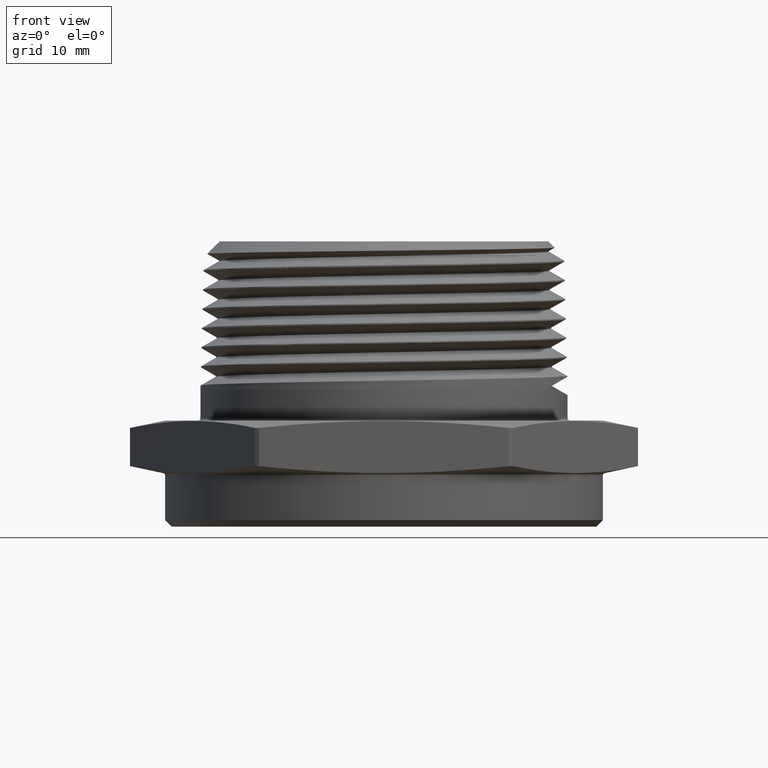
[diagram: clean part render]
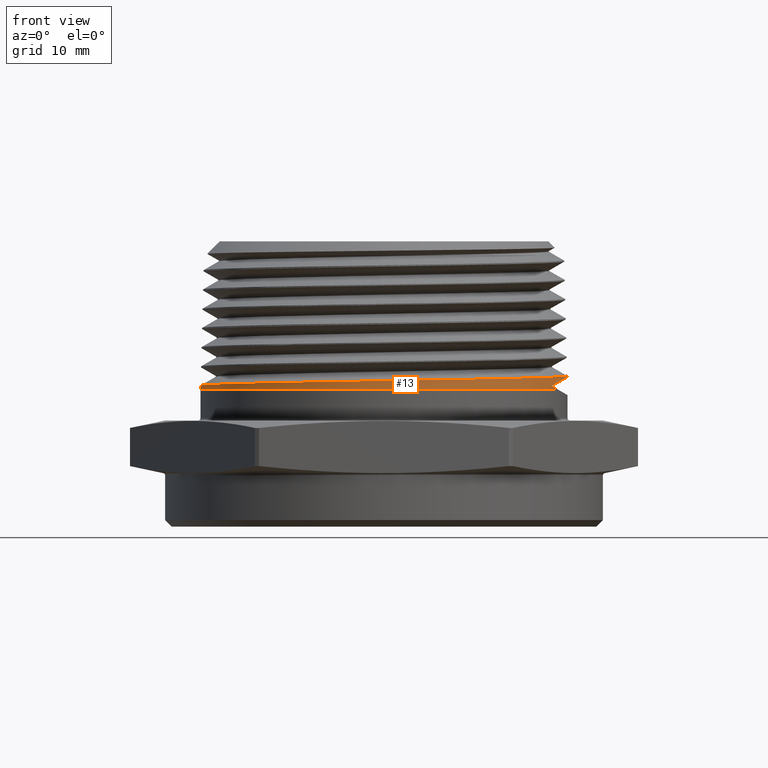
[diagram: same view with one face highlighted and labeled with its STEP entity id]
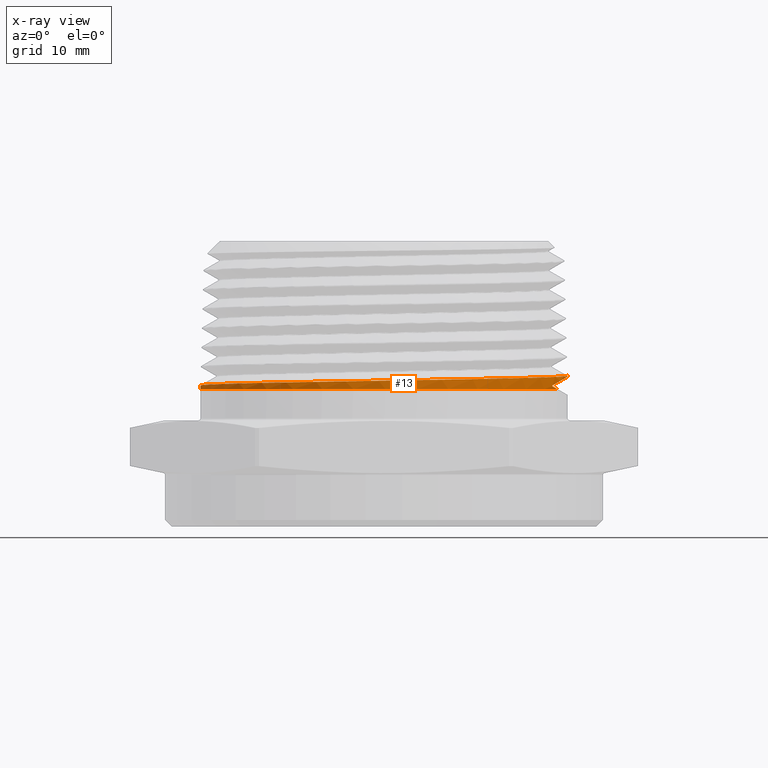
[diagram: x-ray of the same camera — body ghosted, the highlighted face saturated]
A machine part, front view. The second image highlights one B-rep face of the part: STEP entity #13.
The next image is the same camera in x-ray: the body ghosted, the highlighted face saturated — about 0% of this face is hidden behind the body in this view.
In plain terms, the highlighted conical surface has half-angle 1.47 deg.
Its self-contained STEP definition (entity closure, byte-faithful):
#13 = ADVANCED_FACE ( 'NONE', ( #7384 ), #7389, .T. ) ;
#61 = DIRECTION ( 'NONE',  ( -1.000000000000000000, 0.0000000000000000000, 0.0000000000000000000 ) ) ;
#62 = CARTESIAN_POINT ( 'NONE',  ( 0.0000000000000000000, 0.0000000000000000000, 0.2594869294921575100 ) ) ;
#63 = DIRECTION ( 'NONE',  ( -0.0000000000000000000, -0.0000000000000000000, -1.000000000000000000 ) ) ;
#167 =( BOUNDED_CURVE ( )  B_SPLINE_CURVE ( 3, ( #5749, #5744, #5745, #5750 ),
 .UNSPECIFIED., .F., .T. ) 
 B_SPLINE_CURVE_WITH_KNOTS ( ( 4, 4 ),
 ( 5.869370131853280300, 5.943002908219813900 ),
 .UNSPECIFIED. ) 
 CURVE ( )  GEOMETRIC_REPRESENTATION_ITEM ( )  RATIONAL_B_SPLINE_CURVE ( ( 1.000000000000000000, 0.9995482355523807000, 0.9995482355523807000, 1.000000000000000000 ) ) 
 REPRESENTATION_ITEM ( '' )  );
#168 =( BOUNDED_CURVE ( )  B_SPLINE_CURVE ( 3, ( #5755, #5686, #5756, #5757 ),
 .UNSPECIFIED., .F., .T. ) 
 B_SPLINE_CURVE_WITH_KNOTS ( ( 4, 4 ),
 ( 3.141592653589793100, 3.543415762295796200 ),
 .UNSPECIFIED. ) 
 CURVE ( )  GEOMETRIC_REPRESENTATION_ITEM ( )  RATIONAL_B_SPLINE_CURVE ( ( 1.000000000000000000, 0.9865900485260260500, 0.9865900485260260500, 1.000000000000000000 ) ) 
 REPRESENTATION_ITEM ( '' )  );
#169 = B_SPLINE_CURVE_WITH_KNOTS ( 'NONE', 3,
 ( #5752, #5743, #5753, #5754 ),
 .UNSPECIFIED., .F., .F.,
 ( 4, 4 ),
 ( 0.03793897753117499900, 0.03802420484377673500 ),
 .UNSPECIFIED. ) ;
#190 = AXIS2_PLACEMENT_3D ( 'NONE', #62, #63, #61 ) ;
#222 = AXIS2_PLACEMENT_3D ( 'NONE', #5746, #5747, #5748 ) ;
#824 = CARTESIAN_POINT ( 'NONE',  ( 0.7616025199133236200, -0.3288974514528525400, 0.3978522102968976000 ) ) ;
#828 = CARTESIAN_POINT ( 'NONE',  ( -0.8300000000000001800, 0.0000000000000000000, 0.3816959141940095600 ) ) ;
#863 = CARTESIAN_POINT ( 'NONE',  ( 0.7837860456256534600, -0.2730923555914762700, 0.3816959141940095600 ) ) ;
#866 = CARTESIAN_POINT ( 'NONE',  ( 0.8285928721710982300, 1.585649484003579900E-015, 0.4365291082060320800 ) ) ;
#867 = CARTESIAN_POINT ( 'NONE',  ( -0.8295792180391073900, 4.789723489436561000E-015, 0.3980930164504476500 ) ) ;
#869 = CARTESIAN_POINT ( 'NONE',  ( 0.7616025199133239500, -0.3291141407280375200, 0.3945035787355981000 ) ) ;
#877 = CARTESIAN_POINT ( 'NONE',  ( 0.8284634355445250600, 1.417146146713336500E-015, 0.4415730164504497700 ) ) ;
#1237 = DIRECTION ( 'NONE',  ( 0.02565352539212741000, 3.141650775831418500E-018, -0.9996708941621514900 ) ) ;
#2189 = CARTESIAN_POINT ( 'NONE',  ( 0.8331361234087172300, 1.020297486786519900E-016, 0.2594869294921575100 ) ) ;
#4657 = EDGE_CURVE ( 'NONE', #7336, #7325, #7464, .T. ) ;
#4672 = EDGE_CURVE ( 'NONE', #7336, #7326, #7718, .T. ) ;
#4673 = EDGE_CURVE ( 'NONE', #7326, #7323, #7470, .T. ) ;
#4674 = EDGE_CURVE ( 'NONE', #7323, #7321, #7469, .T. ) ;
#4675 = EDGE_CURVE ( 'NONE', #7328, #7321, #167, .T. ) ;
#4676 = EDGE_CURVE ( 'NONE', #5199, #7328, #169, .T. ) ;
#4677 = EDGE_CURVE ( 'NONE', #7325, #5199, #168, .T. ) ;
#5008 = ORIENTED_EDGE ( 'NONE', *, *, #4676, .F. ) ;
#5009 = ORIENTED_EDGE ( 'NONE', *, *, #4677, .F. ) ;
#5119 = EDGE_LOOP ( 'NONE', ( #5151, #5152, #5153, #5154, #5155, #5008, #5009 ) ) ;
#5151 = ORIENTED_EDGE ( 'NONE', *, *, #4657, .F. ) ;
#5152 = ORIENTED_EDGE ( 'NONE', *, *, #4672, .T. ) ;
#5153 = ORIENTED_EDGE ( 'NONE', *, *, #4673, .T. ) ;
#5154 = ORIENTED_EDGE ( 'NONE', *, *, #4674, .T. ) ;
#5155 = ORIENTED_EDGE ( 'NONE', *, *, #4675, .F. ) ;
#5199 = VERTEX_POINT ( 'NONE', #824 ) ;
#5629 = CARTESIAN_POINT ( 'NONE',  ( 0.8284869047044064500, -0.05474459136989899600, 0.4406584662790776200 ) ) ;
#5630 = CARTESIAN_POINT ( 'NONE',  ( 0.8284634355445250600, 1.417146146713336500E-015, 0.4415730164504497700 ) ) ;
#5686 = CARTESIAN_POINT ( 'NONE',  ( 0.8285928721710985600, -0.1134037409271062800, 0.4365291082060322500 ) ) ;
#5687 = DIRECTION ( 'NONE',  ( -0.02565352539212741000, 0.0000000000000000000, -0.9996708941621514900 ) ) ;
#5688 = CARTESIAN_POINT ( 'NONE',  ( -0.8331361234087172300, 0.0000000000000000000, 0.2594869294921575100 ) ) ;
#5689 = CARTESIAN_POINT ( 'NONE',  ( 0.8231288701480736800, -0.1087909912082236900, 0.4397556614123447300 ) ) ;
#5690 = CARTESIAN_POINT ( 'NONE',  ( 0.8072358009317180900, -0.1886639130498085900, 0.4383952045899307000 ) ) ;
#5691 = CARTESIAN_POINT ( 'NONE',  ( 0.8005980526482339200, -0.2151659075075994000, 0.4379375147009466100 ) ) ;
#5692 = CARTESIAN_POINT ( 'NONE',  ( 0.7846961124396107900, -0.2674779544471820900, 0.4370242878646144500 ) ) ;
#5693 = CARTESIAN_POINT ( 'NONE',  ( 0.7755167697256776200, -0.2930347210191959200, 0.4365731642503668000 ) ) ;
#5694 = CARTESIAN_POINT ( 'NONE',  ( 0.7444120130093341300, -0.3679646725380448800, 0.4352178824643982400 ) ) ;
#5695 = CARTESIAN_POINT ( 'NONE',  ( 0.7189533140610339100, -0.4156139824068627000, 0.4343201152857271700 ) ) ;
#5696 = CARTESIAN_POINT ( 'NONE',  ( 0.6735245109511469600, -0.4835546236731538300, 0.4329549922958432200 ) ) ;
#5697 = CARTESIAN_POINT ( 'NONE',  ( 0.6571479158120456800, -0.5055994543721821200, 0.4324950202074069300 ) ) ;
#5698 = CARTESIAN_POINT ( 'NONE',  ( 0.6226786867320582800, -0.5475253378788694800, 0.4315886320198209500 ) ) ;
#5699 = CARTESIAN_POINT ( 'NONE',  ( 0.6045042450601855200, -0.5675373678943408400, 0.4311396007921464700 ) ) ;
#5700 = CARTESIAN_POINT ( 'NONE',  ( 0.5663058188173031300, -0.6056897882638864200, 0.4302378875604012700 ) ) ;
#5701 = CARTESIAN_POINT ( 'NONE',  ( 0.5462818179477121300, -0.6238301660320195700, 0.4297853692191328500 ) ) ;
#5702 = CARTESIAN_POINT ( 'NONE',  ( 0.5148406730660272100, -0.6496188614683160400, 0.4291063241921094800 ) ) ;
#5703 = CARTESIAN_POINT ( 'NONE',  ( 0.5041256892622004700, -0.6579776955430108900, 0.4288798171773635100 ) ) ;
#5704 = CARTESIAN_POINT ( 'NONE',  ( 0.4822183298137173700, -0.6742122581316820600, 0.4284254314603283000 ) ) ;
#5705 = CARTESIAN_POINT ( 'NONE',  ( 0.4709975016121851800, -0.6821055609716241100, 0.4281969938915190500 ) ) ;
#5706 = CARTESIAN_POINT ( 'NONE',  ( 0.4142531639267636500, -0.7199590988948264500, 0.4270577997670708700 ) ) ;
#5707 = CARTESIAN_POINT ( 'NONE',  ( 0.3665493668753099200, -0.7453660967742878900, 0.4261598682942794300 ) ) ;
#5708 = CARTESIAN_POINT ( 'NONE',  ( 0.2916289623112549600, -0.7763683419452314100, 0.4248059072465063500 ) ) ;
#5709 = CARTESIAN_POINT ( 'NONE',  ( 0.2660907077448783100, -0.7855091943019240100, 0.4243516897681923200 ) ) ;
#5710 = CARTESIAN_POINT ( 'NONE',  ( 0.2269109407024466100, -0.7973774672731636100, 0.4236681994542475500 ) ) ;
#5711 = CARTESIAN_POINT ( 'NONE',  ( 0.2136881783129117300, -0.8010281226690442200, 0.4234396071915911300 ) ) ;
#5712 = CARTESIAN_POINT ( 'NONE',  ( 0.1872400879667917000, -0.8076318241991156100, 0.4229854172531182800 ) ) ;
#5713 = CARTESIAN_POINT ( 'NONE',  ( 0.1739805527773029500, -0.8105962620567215300, 0.4227592139349210000 ) ) ;
#5714 = CARTESIAN_POINT ( 'NONE',  ( 0.1075085279009050200, -0.8237600863137740600, 0.4216276906958937900 ) ) ;
#5715 = CARTESIAN_POINT ( 'NONE',  ( 0.05377776645863828500, -0.8290314019204827500, 0.4207308718664552500 ) ) ;
#5716 = CARTESIAN_POINT ( 'NONE',  ( -0.02765103877579162500, -0.8290163821960253600, 0.4193713644869673200 ) ) ;
#5717 = CARTESIAN_POINT ( 'NONE',  ( -0.05508621908144271900, -0.8276611153121956600, 0.4189114715750006400 ) ) ;
#5718 = CARTESIAN_POINT ( 'NONE',  ( -0.1092937395627554100, -0.8222840040991882300, 0.4180021611434425200 ) ) ;
#5719 = CARTESIAN_POINT ( 'NONE',  ( -0.1360861526132027500, -0.8182808466019034800, 0.4175523814579409900 ) ) ;
#5720 = CARTESIAN_POINT ( 'NONE',  ( -0.2155522173337253200, -0.8024254125442374900, 0.4161995462474488100 ) ) ;
#5721 = CARTESIAN_POINT ( 'NONE',  ( -0.2673236399926375300, -0.7867643359947110700, 0.4153012229080885700 ) ) ;
#5722 = CARTESIAN_POINT ( 'NONE',  ( -0.3431037120626130300, -0.7553509291711680800, 0.4139318442534933300 ) ) ;
#5723 = CARTESIAN_POINT ( 'NONE',  ( -0.3677546749703238800, -0.7436642831268331900, 0.4134751689399788200 ) ) ;
#5724 = CARTESIAN_POINT ( 'NONE',  ( -0.4154990477241523600, -0.7181079814921927900, 0.4125713404534224200 ) ) ;
#5725 = CARTESIAN_POINT ( 'NONE',  ( -0.4386550910515827900, -0.7042123849336522400, 0.4121230233957428000 ) ) ;
#5726 = CARTESIAN_POINT ( 'NONE',  ( -0.4835472903286355800, -0.6742060132327193400, 0.4112217354901617200 ) ) ;
#5727 = CARTESIAN_POINT ( 'NONE',  ( -0.5052834872475550100, -0.6580952991291932900, 0.4107688573554742500 ) ) ;
#5728 = CARTESIAN_POINT ( 'NONE',  ( -0.5473072849594753400, -0.6236138015217604900, 0.4098616362909898700 ) ) ;
#5729 = CARTESIAN_POINT ( 'NONE',  ( -0.5676767840674118400, -0.6051468471027537900, 0.4094052364146736300 ) ) ;
#5730 = CARTESIAN_POINT ( 'NONE',  ( -0.6253402409262296400, -0.5474355950889676600, 0.4080435910662758600 ) ) ;
#5731 = CARTESIAN_POINT ( 'NONE',  ( -0.6595765212909636700, -0.5056735466746391500, 0.4071468420421259200 ) ) ;
#5732 = CARTESIAN_POINT ( 'NONE',  ( -0.7047095938293574900, -0.4381677593708459000, 0.4057917340140454500 ) ) ;
#5733 = CARTESIAN_POINT ( 'NONE',  ( -0.7187257605627182000, -0.4148197327210368900, 0.4053359748883823600 ) ) ;
#5734 = CARTESIAN_POINT ( 'NONE',  ( -0.7445259995137296600, -0.3665542795123157800, 0.4044227555358108100 ) ) ;
#5735 = CARTESIAN_POINT ( 'NONE',  ( -0.7561289796131660500, -0.3419828148276234400, 0.4039717756572699900 ) ) ;
#5736 = CARTESIAN_POINT ( 'NONE',  ( -0.7871779835786340000, -0.2669969915231676900, 0.4026174515321584400 ) ) ;
#5737 = CARTESIAN_POINT ( 'NONE',  ( -0.8028991474535268600, -0.2153229253648280000, 0.4017206152654969100 ) ) ;
#5738 = CARTESIAN_POINT ( 'NONE',  ( -0.8188750125718555800, -0.1352401388247870000, 0.4003581499034904500 ) ) ;
#5739 = CARTESIAN_POINT ( 'NONE',  ( -0.8229132416947149100, -0.1080558835072792900, 0.3998982742688845800 ) ) ;
#5740 = CARTESIAN_POINT ( 'NONE',  ( -0.8282416694771729300, -0.05400549118586670000, 0.3989921469316425900 ) ) ;
#5741 = CARTESIAN_POINT ( 'NONE',  ( -0.8295676606359798600, -0.02699531847032497100, 0.3985433872802899300 ) ) ;
#5742 = CARTESIAN_POINT ( 'NONE',  ( -0.8295792180391073900, 4.789723489436561000E-015, 0.3980930164504476500 ) ) ;
#5743 = CARTESIAN_POINT ( 'NONE',  ( 0.7616025199133237300, -0.3289697011813033100, 0.3967360010388424900 ) ) ;
#5744 = CARTESIAN_POINT ( 'NONE',  ( 0.7696830948834723100, -0.3107167030927579500, 0.3898382566013760000 ) ) ;
#5745 = CARTESIAN_POINT ( 'NONE',  ( 0.7770809455401643800, -0.2920343346840596500, 0.3855671055333101400 ) ) ;
#5746 = CARTESIAN_POINT ( 'NONE',  ( 0.0000000000000000000, 0.0000000000000000000, 0.3816959141940095600 ) ) ;
#5747 = DIRECTION ( 'NONE',  ( 0.0000000000000000000, 0.0000000000000000000, 1.000000000000000000 ) ) ;
#5748 = DIRECTION ( 'NONE',  ( -1.000000000000000000, 0.0000000000000000000, 0.0000000000000000000 ) ) ;
#5749 = CARTESIAN_POINT ( 'NONE',  ( 0.7616025199133239500, -0.3291141407280375200, 0.3945035787355981000 ) ) ;
#5750 = CARTESIAN_POINT ( 'NONE',  ( 0.7837860456256534600, -0.2730923555914762700, 0.3816959141940095600 ) ) ;
#5752 = CARTESIAN_POINT ( 'NONE',  ( 0.7616025199133236200, -0.3288974514528525400, 0.3978522102968976000 ) ) ;
#5753 = CARTESIAN_POINT ( 'NONE',  ( 0.7616025199133238400, -0.3290419309322367100, 0.3956197904304010700 ) ) ;
#5754 = CARTESIAN_POINT ( 'NONE',  ( 0.7616025199133239500, -0.3291141407280375200, 0.3945035787355981000 ) ) ;
#5755 = CARTESIAN_POINT ( 'NONE',  ( 0.8285928721710982300, 1.585649484003579900E-015, 0.4365291082060320800 ) ) ;
#5756 = CARTESIAN_POINT ( 'NONE',  ( 0.8059592388270164800, -0.2245263738600148900, 0.4234615739020869400 ) ) ;
#5757 = CARTESIAN_POINT ( 'NONE',  ( 0.7616025199133236200, -0.3288974514528525400, 0.3978522102968976000 ) ) ;
#7321 = VERTEX_POINT ( 'NONE', #863 ) ;
#7323 = VERTEX_POINT ( 'NONE', #828 ) ;
#7325 = VERTEX_POINT ( 'NONE', #866 ) ;
#7326 = VERTEX_POINT ( 'NONE', #867 ) ;
#7328 = VERTEX_POINT ( 'NONE', #869 ) ;
#7336 = VERTEX_POINT ( 'NONE', #877 ) ;
#7384 = FACE_OUTER_BOUND ( 'NONE', #5119, .T. ) ;
#7389 = CONICAL_SURFACE ( 'NONE', #190, 0.8331361234087172300, 0.02565634000430899700 ) ;
#7464 = LINE ( 'NONE', #2189, #7466 ) ;
#7466 = VECTOR ( 'NONE', #1237, 39.37007874015748100 ) ;
#7469 = CIRCLE ( 'NONE', #222, 0.8300000000000001800 ) ;
#7470 = LINE ( 'NONE', #5688, #7471 ) ;
#7471 = VECTOR ( 'NONE', #5687, 39.37007874015748100 ) ;
#7718 = B_SPLINE_CURVE_WITH_KNOTS ( 'NONE', 3,
 ( #5630, #5629, #5689, #5690, #5691, #5692, #5693, #5694, #5695, #5696, #5697, #5698, #5699, #5700, #5701, #5702, #5703, #5704, #5705, #5706, #5707, #5708, #5709, #5710, #5711, #5712, #5713, #5714, #5715, #5716, #5717, #5718, #5719, #5720, #5721, #5722, #5723, #5724, #5725, #5726, #5727, #5728, #5729, #5730, #5731, #5732, #5733, #5734, #5735, #5736, #5737, #5738, #5739, #5740, #5741, #5742 ),
 .UNSPECIFIED., .F., .F.,
 ( 4, 2, 2, 2, 2, 2, 2, 2, 2, 2, 2, 2, 2, 2, 2, 2, 2, 2, 2, 2, 2, 2, 2, 2, 2, 2, 2, 4 ),
 ( 0.8142806753956208800, 0.8184343737009505100, 0.8205112228536153300, 0.8225880720062801500, 0.8267417703116096700, 0.8288186194642744900, 0.8308954686169393000, 0.8329723177696041200, 0.8340107423459365300, 0.8350491669222689400, 0.8392028652275984600, 0.8412797143802632800, 0.8423181389565956900, 0.8433565635329280900, 0.8475102618382577300, 0.8495871109909224300, 0.8516639601435872500, 0.8558176584489168800, 0.8578945076015815900, 0.8599713567542464100, 0.8620482059069112200, 0.8641250550595760400, 0.8682787533649055600, 0.8703556025175703800, 0.8724324516702352000, 0.8765861499755647200, 0.8786629991282295400, 0.8807398482808943600 ),
 .UNSPECIFIED. ) ;